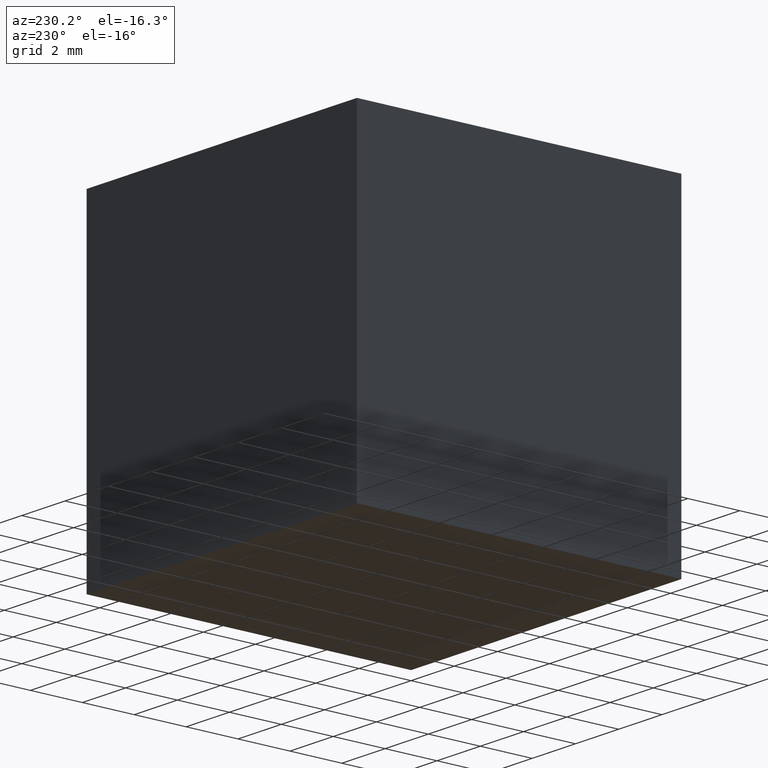
[diagram: clean part render]
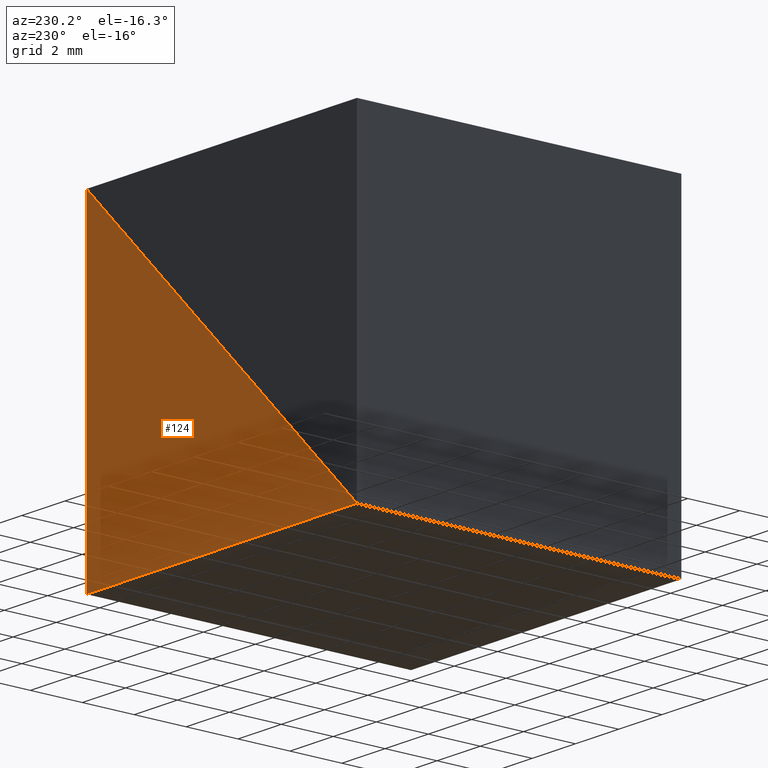
[diagram: same view with one face highlighted and labeled with its STEP entity id]
A machine part, auxiliary view. The second image highlights one B-rep face of the part: STEP entity #124.
In plain terms, the highlighted planar face has unit normal (-0, 1, 0).
Its self-contained STEP definition (entity closure, byte-faithful):
#4 = VERTEX_POINT ( 'NONE', #48 ) ;
#6 = VECTOR ( 'NONE', #52, 1000.000000000000000 ) ;
#8 = EDGE_CURVE ( 'NONE', #56, #4, #16, .T. ) ;
#11 = CARTESIAN_POINT ( 'NONE',  ( 0.0000000000000000000, 12.50000000000000000, 0.0000000000000000000 ) ) ;
#16 = LINE ( 'NONE', #223, #99 ) ;
#26 = EDGE_LOOP ( 'NONE', ( #180, #37, #227 ) ) ;
#37 = ORIENTED_EDGE ( 'NONE', *, *, #235, .T. ) ;
#48 = CARTESIAN_POINT ( 'NONE',  ( -12.50000000000000000, 12.50000000000000000, -12.49999999999999800 ) ) ;
#49 = FACE_OUTER_BOUND ( 'NONE', #26, .T. ) ;
#51 = DIRECTION ( 'NONE',  ( 0.0000000000000000000, -0.0000000000000000000, 1.000000000000000000 ) ) ;
#52 = DIRECTION ( 'NONE',  ( 0.7071067811865475700, 0.0000000000000000000, 0.7071067811865474600 ) ) ;
#56 = VERTEX_POINT ( 'NONE', #158 ) ;
#85 = DIRECTION ( 'NONE',  ( -1.000000000000000000, 0.0000000000000000000, 1.387778780781445700E-016 ) ) ;
#99 = VECTOR ( 'NONE', #85, 1000.000000000000000 ) ;
#123 = LINE ( 'NONE', #295, #6 ) ;
#124 = ADVANCED_FACE ( 'NONE', ( #49 ), #219, .T. ) ;
#126 = DIRECTION ( 'NONE',  ( -0.0000000000000000000, 1.000000000000000000, 0.0000000000000000000 ) ) ;
#153 = DIRECTION ( 'NONE',  ( 0.0000000000000000000, 0.0000000000000000000, -1.000000000000000000 ) ) ;
#158 = CARTESIAN_POINT ( 'NONE',  ( 0.0000000000000000000, 12.50000000000000000, -12.50000000000000000 ) ) ;
#166 = EDGE_CURVE ( 'NONE', #4, #300, #123, .T. ) ;
#180 = ORIENTED_EDGE ( 'NONE', *, *, #166, .T. ) ;
#189 = AXIS2_PLACEMENT_3D ( 'NONE', #242, #126, #51 ) ;
#211 = LINE ( 'NONE', #241, #261 ) ;
#219 = PLANE ( 'NONE',  #189 ) ;
#223 = CARTESIAN_POINT ( 'NONE',  ( 0.0000000000000000000, 12.50000000000000000, -12.50000000000000000 ) ) ;
#227 = ORIENTED_EDGE ( 'NONE', *, *, #8, .T. ) ;
#235 = EDGE_CURVE ( 'NONE', #300, #56, #211, .T. ) ;
#241 = CARTESIAN_POINT ( 'NONE',  ( 0.0000000000000000000, 12.50000000000000000, 0.0000000000000000000 ) ) ;
#242 = CARTESIAN_POINT ( 'NONE',  ( 0.0000000000000000000, 12.50000000000000000, 0.0000000000000000000 ) ) ;
#261 = VECTOR ( 'NONE', #153, 1000.000000000000000 ) ;
#295 = CARTESIAN_POINT ( 'NONE',  ( -12.50000000000000000, 12.50000000000000000, -12.49999999999999800 ) ) ;
#300 = VERTEX_POINT ( 'NONE', #11 ) ;